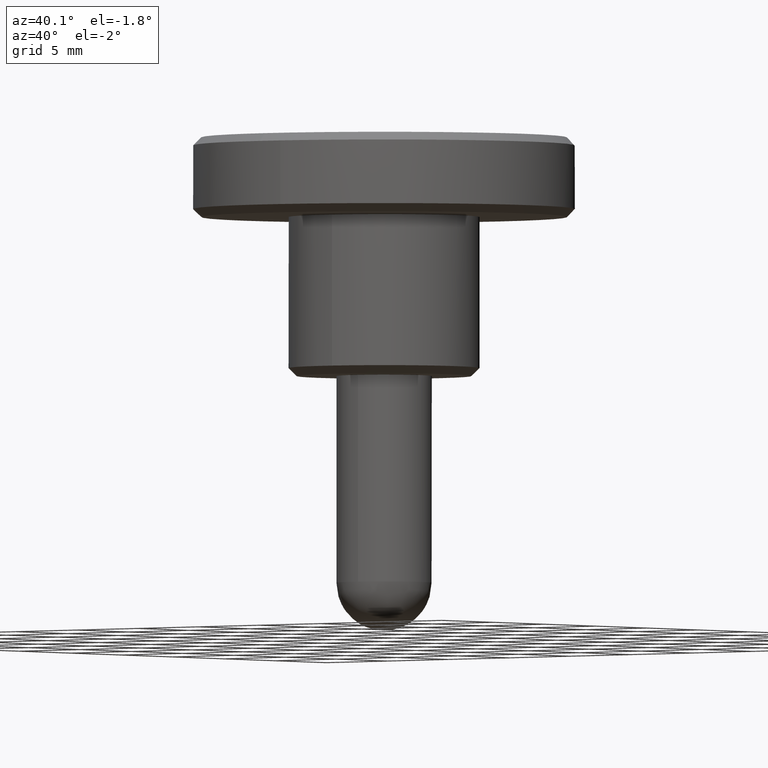
[diagram: clean part render]
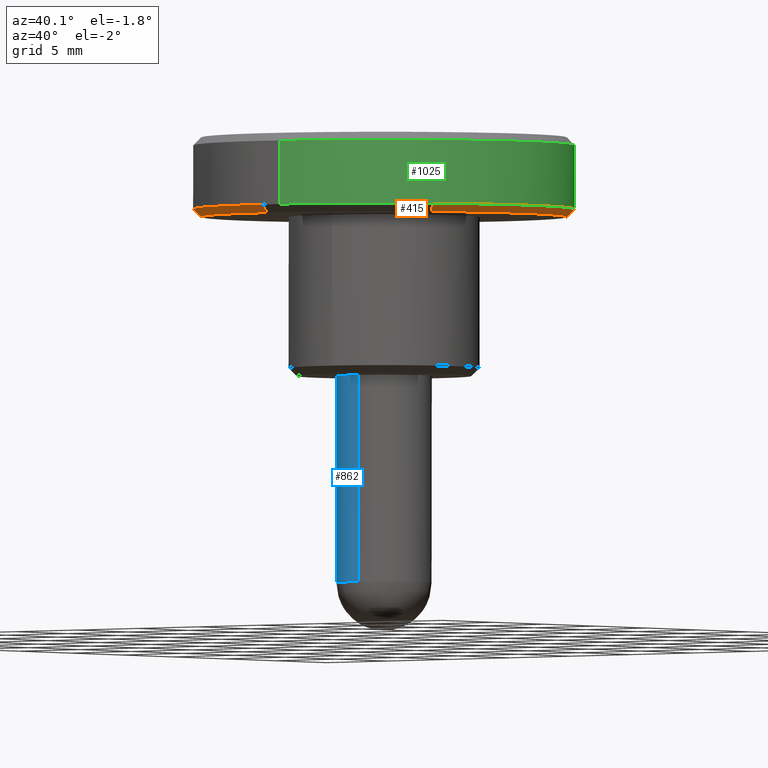
[diagram: same view with three faces highlighted in distinct colors, each labeled with its STEP entity id]
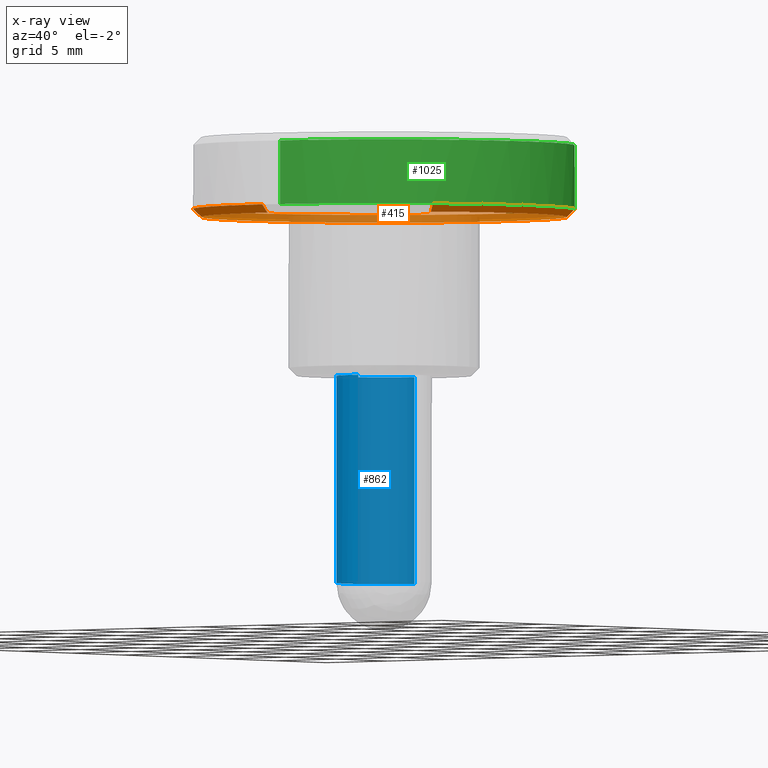
[diagram: x-ray of the same camera — body ghosted, the three highlighted faces saturated]
A machine part, auxiliary view with three faces highlighted in distinct colors.
The next image is the same camera in x-ray (body ghosted, the three faces saturated) — at least one of them is partly hidden behind the body in this view.
Their STEP definitions:

[orange] entity #415 — the highlighted face is a freeform B-spline surface patch.
#260=CARTESIAN_POINT('',(9.406724469765697,-6.593647776452057,9.987500000000001));
#261=CARTESIAN_POINT('',(11.519179152623552,-3.579947343821037,9.987499999999999));
#262=CARTESIAN_POINT('',(11.487062591199660,0.100246076537570,9.987499999999999));
#263=CARTESIAN_POINT('',(11.386816514662092,11.587308667737231,9.987499999999999));
#264=CARTESIAN_POINT('',(-0.100246076537570,11.487062591199660,9.987499999999999));
#265=CARTESIAN_POINT('',(-11.587308667737231,11.386816514662092,9.987499999999999));
#266=CARTESIAN_POINT('',(-11.487062591199660,-0.100246076537570,9.987499999999999));
#267=CARTESIAN_POINT('',(-11.386816514662092,-11.587308667737231,9.987499999999999));
#268=CARTESIAN_POINT('',(0.100246076537570,-11.487062591199660,9.987499999999999));
#269=CARTESIAN_POINT('',(9.836885074599064,-6.895169047186953,10.512812500000004));
#270=CARTESIAN_POINT('',(12.045940310282912,-3.743654946785199,10.512812500000003));
#271=CARTESIAN_POINT('',(12.012355088909260,0.104830234716559,10.512812500000001));
#272=CARTESIAN_POINT('',(11.907524854192697,12.117185323625815,10.512812500000003));
#273=CARTESIAN_POINT('',(-0.104830234716559,12.012355088909260,10.512812500000001));
#274=CARTESIAN_POINT('',(-12.117185323625815,11.907524854192697,10.512812500000003));
#275=CARTESIAN_POINT('',(-12.012355088909260,-0.104830234716559,10.512812500000001));
#276=CARTESIAN_POINT('',(-11.907524854192697,-12.117185323625815,10.512812500000003));
#277=CARTESIAN_POINT('',(0.104830234716559,-12.012355088909260,10.512812500000001));
#285=(BOUNDED_SURFACE()B_SPLINE_SURFACE(2,1,((#260,#269),(#261,#270),(#262,#271),(#263,#272),(#264,#273),(#265,#274),(#266,#275),(#267,#276),(#268,#277)),.UNSPECIFIED.,.F.,.F.,.U.)B_SPLINE_SURFACE_WITH_KNOTS((3,2,2,2,3),(2,2),(0.0,7.961391775592033,27.864871214572119,47.768350653552197,67.671830092532289),(0.0,1.0),.UNSPECIFIED.)GEOMETRIC_REPRESENTATION_ITEM()RATIONAL_B_SPLINE_SURFACE(((0.859411254969543,0.859411254969543),(0.882842712474619,0.882842712474619),(1.0,1.0),(0.707106781186548,0.707106781186548),(1.0,1.0),(0.707106781186548,0.707106781186548),(1.0,1.0),(0.707106781186548,0.707106781186548),(1.0,1.0)))REPRESENTATION_ITEM('')SURFACE());
#286=CARTESIAN_POINT('',(11.500000000000000,0.0,10.0));
#287=VERTEX_POINT('',#286);
#288=CARTESIAN_POINT('',(9.416960296170243,-6.600822583614944,10.000000000000339));
#289=VERTEX_POINT('',#288);
#290=CARTESIAN_POINT('',(11.500000000000000,0.0,10.0));
#291=CARTESIAN_POINT('',(11.500000000000000,-3.629086570746213,10.000000000000002));
#292=CARTESIAN_POINT('',(9.416960296170243,-6.600822583614945,10.000000000000343));
#300=(BOUNDED_CURVE()B_SPLINE_CURVE(2,(#290,#291,#292),.UNSPECIFIED.,.F.,.U.)B_SPLINE_CURVE_WITH_KNOTS((3,3),(0.0,0.098673726203085),.UNSPECIFIED.)CURVE()GEOMETRIC_REPRESENTATION_ITEM()RATIONAL_B_SPLINE_CURVE((1.0,0.884396538880244,0.860049271925767))REPRESENTATION_ITEM(''));
#301=EDGE_CURVE('',#287,#289,#300,.T.);
#302=ORIENTED_EDGE('',*,*,#301,.F.);
#303=CARTESIAN_POINT('',(-11.500000000000000,0.0,10.0));
#304=VERTEX_POINT('',#303);
#305=CARTESIAN_POINT('',(-11.500000000000000,0.0,10.0));
#306=CARTESIAN_POINT('',(-11.500000000000000,11.500000000000000,10.000000000000002));
#307=CARTESIAN_POINT('',(0.0,11.500000000000000,10.0));
#308=CARTESIAN_POINT('',(11.500000000000000,11.500000000000000,10.000000000000002));
#309=CARTESIAN_POINT('',(11.500000000000000,0.0,10.0));
#317=(BOUNDED_CURVE()B_SPLINE_CURVE(2,(#305,#306,#307,#308,#309),.UNSPECIFIED.,.F.,.U.)B_SPLINE_CURVE_WITH_KNOTS((3,2,3),(0.500000000000000,0.750000000000000,1.0),.UNSPECIFIED.)CURVE()GEOMETRIC_REPRESENTATION_ITEM()RATIONAL_B_SPLINE_CURVE((1.0,0.707106781186548,1.0,0.707106781186548,1.0))REPRESENTATION_ITEM(''));
#318=EDGE_CURVE('',#304,#287,#317,.T.);
#319=ORIENTED_EDGE('',*,*,#318,.F.);
#320=CARTESIAN_POINT('',(0.100355158261185,-11.499562115241771,10.000000000004070));
#321=VERTEX_POINT('',#320);
#322=CARTESIAN_POINT('',(0.100355158261185,-11.499562115241771,10.000000000004068));
#323=CARTESIAN_POINT('',(0.050178534467919,-11.500000000000002,10.0));
#324=CARTESIAN_POINT('',(0.0,-11.500000000000000,10.0));
#325=CARTESIAN_POINT('',(-11.500000000000000,-11.500000000000000,10.000000000000002));
#326=CARTESIAN_POINT('',(-11.500000000000000,0.0,10.0));
#334=(BOUNDED_CURVE()B_SPLINE_CURVE(2,(#322,#323,#324,#325,#326),.UNSPECIFIED.,.F.,.U.)B_SPLINE_CURVE_WITH_KNOTS((3,2,3),(0.248460105664099,0.250000000000000,0.500000000000000),.UNSPECIFIED.)CURVE()GEOMETRIC_REPRESENTATION_ITEM()RATIONAL_B_SPLINE_CURVE((0.996414028098290,0.998195901565301,1.0,0.707106781186548,1.0))REPRESENTATION_ITEM(''));
#335=EDGE_CURVE('',#321,#304,#334,.T.);
#336=ORIENTED_EDGE('',*,*,#335,.F.);
#337=CARTESIAN_POINT('',(0.104718425980838,-11.999543076770090,10.500000000000060));
#338=VERTEX_POINT('',#337);
#339=CARTESIAN_POINT('',(0.100355158261185,-11.499562115241771,10.000000000004070));
#340=CARTESIAN_POINT('',(0.104718425980838,-11.999543076770090,10.500000000000060));
#341=QUASI_UNIFORM_CURVE('',1,(#339,#340),.UNSPECIFIED.,.F.,.U.);
#342=EDGE_CURVE('',#321,#338,#341,.T.);
#343=ORIENTED_EDGE('',*,*,#342,.T.);
#344=CARTESIAN_POINT('',(-12.0,0.0,10.500000000000000));
#345=VERTEX_POINT('',#344);
#346=CARTESIAN_POINT('',(-12.0,0.0,10.500000000000000));
#347=CARTESIAN_POINT('',(-12.0,-12.0,10.500000000000002));
#348=CARTESIAN_POINT('',(0.0,-12.0,10.500000000000000));
#349=CARTESIAN_POINT('',(0.052360209848767,-12.0,10.499999999999998));
#350=CARTESIAN_POINT('',(0.104718425980838,-11.999543076770092,10.500000000000068));
#358=(BOUNDED_CURVE()B_SPLINE_CURVE(2,(#346,#347,#348,#349,#350),.UNSPECIFIED.,.F.,.U.)B_SPLINE_CURVE_WITH_KNOTS((3,2,3),(0.0,0.250000000000000,0.251539894334997),.UNSPECIFIED.)CURVE()GEOMETRIC_REPRESENTATION_ITEM()RATIONAL_B_SPLINE_CURVE((1.0,0.707106781186548,1.0,0.998195901566360,0.996414028100382))REPRESENTATION_ITEM(''));
#359=EDGE_CURVE('',#345,#338,#358,.T.);
#360=ORIENTED_EDGE('',*,*,#359,.F.);
#361=CARTESIAN_POINT('',(-0.104708313807311,11.999543165009131,10.500000000000000));
#362=VERTEX_POINT('',#361);
#363=CARTESIAN_POINT('',(-0.104708313807311,11.999543165009134,10.499999999999996));
#364=CARTESIAN_POINT('',(-12.000000000000002,11.895744552217918,10.500000000000000));
#365=CARTESIAN_POINT('',(-12.0,0.0,10.500000000000000));
#373=(BOUNDED_CURVE()B_SPLINE_CURVE(2,(#363,#364,#365),.UNSPECIFIED.,.F.,.U.)B_SPLINE_CURVE_WITH_KNOTS((3,3),(0.751539745897120,1.0),.UNSPECIFIED.)CURVE()GEOMETRIC_REPRESENTATION_ITEM()RATIONAL_B_SPLINE_CURVE((0.996414371627425,0.708910705714397,1.0))REPRESENTATION_ITEM(''));
#374=EDGE_CURVE('',#362,#345,#373,.T.);
#375=ORIENTED_EDGE('',*,*,#374,.F.);
#376=CARTESIAN_POINT('',(12.0,0.0,10.500000000000000));
#377=VERTEX_POINT('',#376);
#378=CARTESIAN_POINT('',(12.0,0.0,10.500000000000000));
#379=CARTESIAN_POINT('',(12.0,12.0,10.500000000000002));
#380=CARTESIAN_POINT('',(0.0,12.0,10.500000000000000));
#381=CARTESIAN_POINT('',(-0.052355153473084,12.000000000000002,10.499999999999996));
#382=CARTESIAN_POINT('',(-0.104708313807311,11.999543165009134,10.499999999999996));
#390=(BOUNDED_CURVE()B_SPLINE_CURVE(2,(#378,#379,#380,#381,#382),.UNSPECIFIED.,.F.,.U.)B_SPLINE_CURVE_WITH_KNOTS((3,2,3),(0.500000000000000,0.750000000000000,0.751539745897120),.UNSPECIFIED.)CURVE()GEOMETRIC_REPRESENTATION_ITEM()RATIONAL_B_SPLINE_CURVE((1.0,0.707106781186548,1.0,0.998196075472151,0.996414371627425))REPRESENTATION_ITEM(''));
#391=EDGE_CURVE('',#377,#362,#390,.T.);
#392=ORIENTED_EDGE('',*,*,#391,.F.);
#393=CARTESIAN_POINT('',(9.826393352528289,-6.887814869854642,10.500000000000149));
#394=VERTEX_POINT('',#393);
#395=CARTESIAN_POINT('',(9.826393352528289,-6.887814869854643,10.500000000000149));
#396=CARTESIAN_POINT('',(12.0,-3.786872943381589,10.499999999999998));
#397=CARTESIAN_POINT('',(12.0,0.0,10.500000000000000));
#405=(BOUNDED_CURVE()B_SPLINE_CURVE(2,(#395,#396,#397),.UNSPECIFIED.,.F.,.U.)B_SPLINE_CURVE_WITH_KNOTS((3,3),(0.401326273797048,0.500000000000000),.UNSPECIFIED.)CURVE()GEOMETRIC_REPRESENTATION_ITEM()RATIONAL_B_SPLINE_CURVE((0.860049271925832,0.884396538880400,1.0))REPRESENTATION_ITEM(''));
#406=EDGE_CURVE('',#394,#377,#405,.T.);
#407=ORIENTED_EDGE('',*,*,#406,.F.);
#408=CARTESIAN_POINT('',(9.416960296170243,-6.600822583614944,10.000000000000339));
#409=CARTESIAN_POINT('',(9.826393352528289,-6.887814869854642,10.500000000000149));
#410=QUASI_UNIFORM_CURVE('',1,(#408,#409),.UNSPECIFIED.,.F.,.U.);
#411=EDGE_CURVE('',#289,#394,#410,.T.);
#412=ORIENTED_EDGE('',*,*,#411,.F.);
#413=EDGE_LOOP('',(#302,#319,#336,#343,#360,#375,#392,#407,#412));
#414=FACE_OUTER_BOUND('',#413,.T.);
#415=ADVANCED_FACE('',(#414),#285,.T.);

[blue] entity #862 — the highlighted face is a freeform B-spline surface patch.
#695=CARTESIAN_POINT('',(0.372384006263498,-2.976798641473613,-13.0));
#696=VERTEX_POINT('',#695);
#712=CARTESIAN_POINT('',(-0.026179606516640,2.999885769192326,-13.0));
#713=VERTEX_POINT('',#712);
#729=CARTESIAN_POINT('',(-0.026179606512943,2.999885769192358,8.326673E-017));
#730=VERTEX_POINT('',#729);
#731=CARTESIAN_POINT('',(-0.026179606516640,2.999885769192326,-13.0));
#732=CARTESIAN_POINT('',(-0.026179606512943,2.999885769192358,8.326673E-017));
#733=QUASI_UNIFORM_CURVE('',1,(#731,#732),.UNSPECIFIED.,.F.,.U.);
#734=EDGE_CURVE('',#713,#730,#733,.T.);
#753=CARTESIAN_POINT('',(0.372380374356300,-2.976799095804227,1.160246E-016));
#754=VERTEX_POINT('',#753);
#768=CARTESIAN_POINT('',(0.372384006263498,-2.976798641473613,-13.0));
#769=CARTESIAN_POINT('',(0.372380374356300,-2.976799095804227,1.160246E-016));
#770=QUASI_UNIFORM_CURVE('',1,(#768,#769),.UNSPECIFIED.,.F.,.U.);
#771=EDGE_CURVE('',#696,#754,#770,.T.);
#776=CARTESIAN_POINT('',(-0.026179606495122,2.999885769192513,-13.324999999999999));
#777=CARTESIAN_POINT('',(-3.026065375687634,2.973706162697392,-13.325000000000001));
#778=CARTESIAN_POINT('',(-2.999885769192513,-0.026179606495122,-13.324999999999999));
#779=CARTESIAN_POINT('',(-2.973706162697392,-3.026065375687634,-13.325000000000001));
#780=CARTESIAN_POINT('',(0.026179606495122,-2.999885769192513,-13.324999999999999));
#781=CARTESIAN_POINT('',(0.199950476874521,-2.998369293780826,-13.325000000000001));
#782=CARTESIAN_POINT('',(0.372384006239488,-2.976798641476615,-13.324999999999998));
#783=CARTESIAN_POINT('',(-0.026179606495122,2.999885769192513,0.333124999999999));
#784=CARTESIAN_POINT('',(-3.026065375687634,2.973706162697392,0.333124999999999));
#785=CARTESIAN_POINT('',(-2.999885769192513,-0.026179606495122,0.333124999999999));
#786=CARTESIAN_POINT('',(-2.973706162697392,-3.026065375687634,0.333124999999999));
#787=CARTESIAN_POINT('',(0.026179606495122,-2.999885769192513,0.333124999999999));
#788=CARTESIAN_POINT('',(0.199950476874521,-2.998369293780826,0.333124999999999));
#789=CARTESIAN_POINT('',(0.372384006239488,-2.976798641476615,0.333124999999999));
#797=(BOUNDED_SURFACE()B_SPLINE_SURFACE(2,1,((#776,#783),(#777,#784),(#778,#785),(#779,#786),(#780,#787),(#781,#788),(#782,#789)),.UNSPECIFIED.,.F.,.F.,.U.)B_SPLINE_SURFACE_WITH_KNOTS((3,2,2,3),(2,2),(0.0,4.970562748477139,9.941125496954278,10.338770516832451),(0.0,13.658125000000000),.UNSPECIFIED.)GEOMETRIC_REPRESENTATION_ITEM()RATIONAL_B_SPLINE_SURFACE(((1.0,1.0),(0.707106781186548,0.707106781186548),(1.0,1.0),(0.707106781186548,0.707106781186548),(1.0,1.0),(0.976568542494924,0.976568542494924),(0.956886118190660,0.956886118190660)))REPRESENTATION_ITEM('')SURFACE());
#798=CARTESIAN_POINT('',(-3.0,0.0,-13.0));
#799=VERTEX_POINT('',#798);
#800=CARTESIAN_POINT('',(-3.0,0.0,-13.0));
#801=CARTESIAN_POINT('',(-3.0,-3.0,-13.000000000000002));
#802=CARTESIAN_POINT('',(0.0,-3.0,-13.0));
#803=CARTESIAN_POINT('',(0.186914782624781,-3.0,-13.000000000000004));
#804=CARTESIAN_POINT('',(0.372384006263498,-2.976798641473613,-13.000000000000002));
#812=(BOUNDED_CURVE()B_SPLINE_CURVE(2,(#800,#801,#802,#803,#804),.UNSPECIFIED.,.F.,.U.)B_SPLINE_CURVE_WITH_KNOTS((3,2,3),(0.500000000000000,0.750000000000000,0.771473928973422),.UNSPECIFIED.)CURVE()GEOMETRIC_REPRESENTATION_ITEM()RATIONAL_B_SPLINE_CURVE((1.0,0.707106781186548,1.0,0.974841727289611,0.954005430269438))REPRESENTATION_ITEM(''));
#813=EDGE_CURVE('',#799,#696,#812,.T.);
#814=ORIENTED_EDGE('',*,*,#813,.T.);
#815=ORIENTED_EDGE('',*,*,#771,.T.);
#816=CARTESIAN_POINT('',(-3.0,0.0,0.0));
#817=VERTEX_POINT('',#816);
#818=CARTESIAN_POINT('',(0.372380374356300,-2.976799095804227,1.160246E-016));
#819=CARTESIAN_POINT('',(0.186912945401421,-3.000000000000000,0.0));
#820=CARTESIAN_POINT('',(0.0,-3.0,0.0));
#821=CARTESIAN_POINT('',(-3.0,-3.0,0.0));
#822=CARTESIAN_POINT('',(-3.0,0.0,0.0));
#830=(BOUNDED_CURVE()B_SPLINE_CURVE(2,(#818,#819,#820,#821,#822),.UNSPECIFIED.,.F.,.U.)B_SPLINE_CURVE_WITH_KNOTS((3,2,3),(0.728526276788040,0.750000000000000,1.0),.UNSPECIFIED.)CURVE()GEOMETRIC_REPRESENTATION_ITEM()RATIONAL_B_SPLINE_CURVE((0.954005829573284,0.974841968354160,1.0,0.707106781186548,1.0))REPRESENTATION_ITEM(''));
#831=EDGE_CURVE('',#754,#817,#830,.T.);
#832=ORIENTED_EDGE('',*,*,#831,.T.);
#833=CARTESIAN_POINT('',(-3.0,0.0,0.0));
#834=CARTESIAN_POINT('',(-3.000000000000000,2.973933631749597,0.0));
#835=CARTESIAN_POINT('',(-0.026179606512943,2.999885769192358,8.326673E-017));
#843=(BOUNDED_CURVE()B_SPLINE_CURVE(2,(#833,#834,#835),.UNSPECIFIED.,.F.,.U.)B_SPLINE_CURVE_WITH_KNOTS((3,3),(0.0,0.248460105662920),.UNSPECIFIED.)CURVE()GEOMETRIC_REPRESENTATION_ITEM()RATIONAL_B_SPLINE_CURVE((1.0,0.708910879622628,0.996414028095562))REPRESENTATION_ITEM(''));
#844=EDGE_CURVE('',#817,#730,#843,.T.);
#845=ORIENTED_EDGE('',*,*,#844,.T.);
#846=ORIENTED_EDGE('',*,*,#734,.F.);
#847=CARTESIAN_POINT('',(-0.026179606516640,2.999885769192326,-13.0));
#848=CARTESIAN_POINT('',(-3.000000000000000,2.973933631742269,-13.000000000000002));
#849=CARTESIAN_POINT('',(-3.0,0.0,-13.0));
#857=(BOUNDED_CURVE()B_SPLINE_CURVE(2,(#847,#848,#849),.UNSPECIFIED.,.F.,.U.)B_SPLINE_CURVE_WITH_KNOTS((3,3),(0.251539894337514,0.500000000000000),.UNSPECIFIED.)CURVE()GEOMETRIC_REPRESENTATION_ITEM()RATIONAL_B_SPLINE_CURVE((0.996414028094558,0.708910879623136,1.0))REPRESENTATION_ITEM(''));
#858=EDGE_CURVE('',#713,#799,#857,.T.);
#859=ORIENTED_EDGE('',*,*,#858,.T.);
#860=EDGE_LOOP('',(#814,#815,#832,#845,#846,#859));
#861=FACE_OUTER_BOUND('',#860,.T.);
#862=ADVANCED_FACE('',(#861),#797,.T.);

[green] entity #1025 — the highlighted face is a freeform B-spline surface patch.
#150=CARTESIAN_POINT('',(1.489528037983314,-11.907195565035320,14.500000000000041));
#151=VERTEX_POINT('',#150);
#167=CARTESIAN_POINT('',(12.0,0.0,14.500000000000000));
#168=VERTEX_POINT('',#167);
#169=CARTESIAN_POINT('',(12.0,0.0,14.500000000000000));
#170=CARTESIAN_POINT('',(12.0,-10.592390362221597,14.500000000000000));
#171=CARTESIAN_POINT('',(1.489528037983313,-11.907195565035320,14.500000000000036));
#179=(BOUNDED_CURVE()B_SPLINE_CURVE(2,(#169,#170,#171),.UNSPECIFIED.,.F.,.U.)B_SPLINE_CURVE_WITH_KNOTS((3,3),(0.500000000000000,0.728526184151729),.UNSPECIFIED.)CURVE()GEOMETRIC_REPRESENTATION_ITEM()RATIONAL_B_SPLINE_CURVE((1.0,0.732264921362577,0.954005649801741))REPRESENTATION_ITEM(''));
#180=EDGE_CURVE('',#168,#151,#179,.T.);
#182=CARTESIAN_POINT('',(-0.104708690941642,11.999543161718551,14.500000000000011));
#183=VERTEX_POINT('',#182);
#184=CARTESIAN_POINT('',(-0.104708690941642,11.999543161718558,14.500000000000016));
#185=CARTESIAN_POINT('',(-0.052355342051017,11.999999999999998,14.500000000000000));
#186=CARTESIAN_POINT('',(0.0,12.0,14.500000000000000));
#187=CARTESIAN_POINT('',(12.0,12.0,14.500000000000000));
#188=CARTESIAN_POINT('',(12.0,0.0,14.500000000000000));
#196=(BOUNDED_CURVE()B_SPLINE_CURVE(2,(#184,#185,#186,#187,#188),.UNSPECIFIED.,.F.,.U.)B_SPLINE_CURVE_WITH_KNOTS((3,2,3),(0.248460248566877,0.250000000000000,0.500000000000000),.UNSPECIFIED.)CURVE()GEOMETRIC_REPRESENTATION_ITEM()RATIONAL_B_SPLINE_CURVE((0.996414358815547,0.998196068986319,1.0,0.707106781186548,1.0))REPRESENTATION_ITEM(''));
#197=EDGE_CURVE('',#183,#168,#196,.T.);
#361=CARTESIAN_POINT('',(-0.104708313807311,11.999543165009131,10.500000000000000));
#362=VERTEX_POINT('',#361);
#376=CARTESIAN_POINT('',(12.0,0.0,10.500000000000000));
#377=VERTEX_POINT('',#376);
#378=CARTESIAN_POINT('',(12.0,0.0,10.500000000000000));
#379=CARTESIAN_POINT('',(12.0,12.0,10.500000000000002));
#380=CARTESIAN_POINT('',(0.0,12.0,10.500000000000000));
#381=CARTESIAN_POINT('',(-0.052355153473084,12.000000000000002,10.499999999999996));
#382=CARTESIAN_POINT('',(-0.104708313807311,11.999543165009134,10.499999999999996));
#390=(BOUNDED_CURVE()B_SPLINE_CURVE(2,(#378,#379,#380,#381,#382),.UNSPECIFIED.,.F.,.U.)B_SPLINE_CURVE_WITH_KNOTS((3,2,3),(0.500000000000000,0.750000000000000,0.751539745897120),.UNSPECIFIED.)CURVE()GEOMETRIC_REPRESENTATION_ITEM()RATIONAL_B_SPLINE_CURVE((1.0,0.707106781186548,1.0,0.998196075472151,0.996414371627425))REPRESENTATION_ITEM(''));
#391=EDGE_CURVE('',#377,#362,#390,.T.);
#393=CARTESIAN_POINT('',(9.826393352528289,-6.887814869854642,10.500000000000149));
#394=VERTEX_POINT('',#393);
#395=CARTESIAN_POINT('',(9.826393352528289,-6.887814869854643,10.500000000000149));
#396=CARTESIAN_POINT('',(12.0,-3.786872943381589,10.499999999999998));
#397=CARTESIAN_POINT('',(12.0,0.0,10.500000000000000));
#405=(BOUNDED_CURVE()B_SPLINE_CURVE(2,(#395,#396,#397),.UNSPECIFIED.,.F.,.U.)B_SPLINE_CURVE_WITH_KNOTS((3,3),(0.401326273797048,0.500000000000000),.UNSPECIFIED.)CURVE()GEOMETRIC_REPRESENTATION_ITEM()RATIONAL_B_SPLINE_CURVE((0.860049271925832,0.884396538880400,1.0))REPRESENTATION_ITEM(''));
#406=EDGE_CURVE('',#394,#377,#405,.T.);
#444=CARTESIAN_POINT('',(1.489529790917476,-11.907195345753330,10.500000000000000));
#445=VERTEX_POINT('',#444);
#446=CARTESIAN_POINT('',(1.489529790917476,-11.907195345753333,10.500000000000000));
#447=CARTESIAN_POINT('',(6.771179646926979,-11.246487716688764,10.500000000000002));
#448=CARTESIAN_POINT('',(9.826393352528289,-6.887814869854643,10.500000000000149));
#456=(BOUNDED_CURVE()B_SPLINE_CURVE(2,(#446,#447,#448),.UNSPECIFIED.,.F.,.U.)B_SPLINE_CURVE_WITH_KNOTS((3,3),(0.271473840675717,0.401326273797047),.UNSPECIFIED.)CURVE()GEOMETRIC_REPRESENTATION_ITEM()RATIONAL_B_SPLINE_CURVE((0.954005601621221,0.828008809124190,0.860049271925832))REPRESENTATION_ITEM(''));
#457=EDGE_CURVE('',#445,#394,#456,.T.);
#990=CARTESIAN_POINT('',(1.489536024957952,-11.907194565906458,10.399999999999999));
#991=CARTESIAN_POINT('',(12.092793966029335,-10.580775097598652,10.399999999999999));
#992=CARTESIAN_POINT('',(11.999543076770051,0.104718425980487,10.400000000000000));
#993=CARTESIAN_POINT('',(11.894824650789566,12.104261502750537,10.399999999999999));
#994=CARTESIAN_POINT('',(-0.104718425980487,11.999543076770051,10.400000000000000));
#995=CARTESIAN_POINT('',(1.489536024957952,-11.907194565906458,14.602500000000010));
#996=CARTESIAN_POINT('',(12.092793966029335,-10.580775097598652,14.602500000000004));
#997=CARTESIAN_POINT('',(11.999543076770051,0.104718425980487,14.602499999999999));
#998=CARTESIAN_POINT('',(11.894824650789566,12.104261502750537,14.602499999999997));
#999=CARTESIAN_POINT('',(-0.104718425980487,11.999543076770051,14.602499999999999));
#1007=(BOUNDED_SURFACE()B_SPLINE_SURFACE(2,1,((#990,#995),(#991,#996),(#992,#997),(#993,#998),(#994,#999)),.UNSPECIFIED.,.F.,.F.,.U.)B_SPLINE_SURFACE_WITH_KNOTS((3,2,3),(2,2),(0.0,18.291670914395869,38.173921908304429),(0.0,4.202500000000006),.UNSPECIFIED.)GEOMETRIC_REPRESENTATION_ITEM()RATIONAL_B_SPLINE_SURFACE(((0.956886118190660,0.956886118190660),(0.730538238691624,0.730538238691624),(1.0,1.0),(0.707106781186548,0.707106781186548),(1.0,1.0)))REPRESENTATION_ITEM('')SURFACE());
#1008=ORIENTED_EDGE('',*,*,#180,.T.);
#1009=CARTESIAN_POINT('',(1.489529790917476,-11.907195345753330,10.500000000000000));
#1010=CARTESIAN_POINT('',(1.489528037983314,-11.907195565035320,14.500000000000041));
#1011=QUASI_UNIFORM_CURVE('',1,(#1009,#1010),.UNSPECIFIED.,.F.,.U.);
#1012=EDGE_CURVE('',#445,#151,#1011,.T.);
#1013=ORIENTED_EDGE('',*,*,#1012,.F.);
#1014=ORIENTED_EDGE('',*,*,#457,.T.);
#1015=ORIENTED_EDGE('',*,*,#406,.T.);
#1016=ORIENTED_EDGE('',*,*,#391,.T.);
#1017=CARTESIAN_POINT('',(-0.104708313807311,11.999543165009131,10.500000000000000));
#1018=CARTESIAN_POINT('',(-0.104708690941642,11.999543161718551,14.500000000000011));
#1019=QUASI_UNIFORM_CURVE('',1,(#1017,#1018),.UNSPECIFIED.,.F.,.U.);
#1020=EDGE_CURVE('',#362,#183,#1019,.T.);
#1021=ORIENTED_EDGE('',*,*,#1020,.T.);
#1022=ORIENTED_EDGE('',*,*,#197,.T.);
#1023=EDGE_LOOP('',(#1008,#1013,#1014,#1015,#1016,#1021,#1022));
#1024=FACE_OUTER_BOUND('',#1023,.T.);
#1025=ADVANCED_FACE('',(#1024),#1007,.T.);